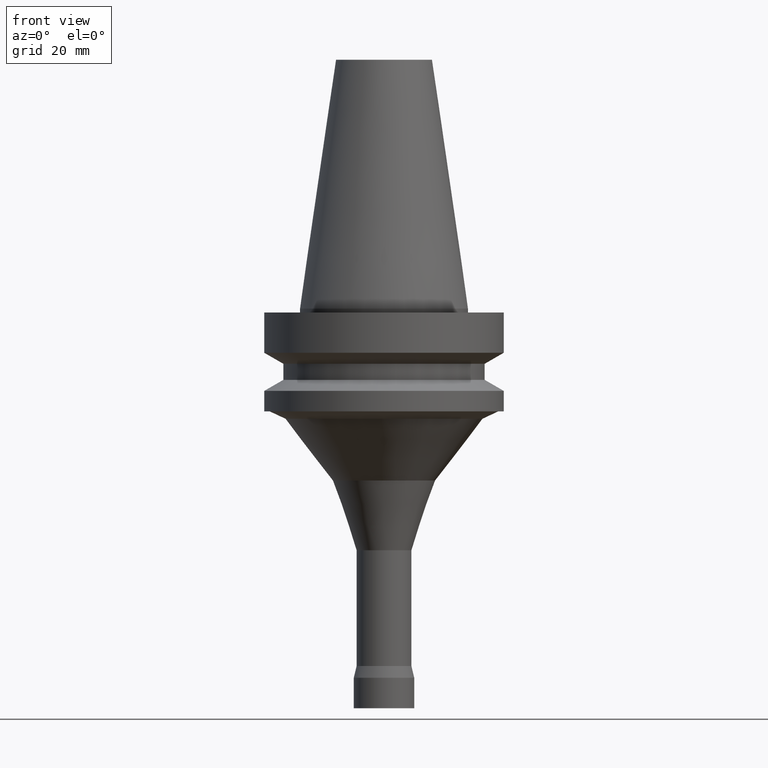
[diagram: clean part render]
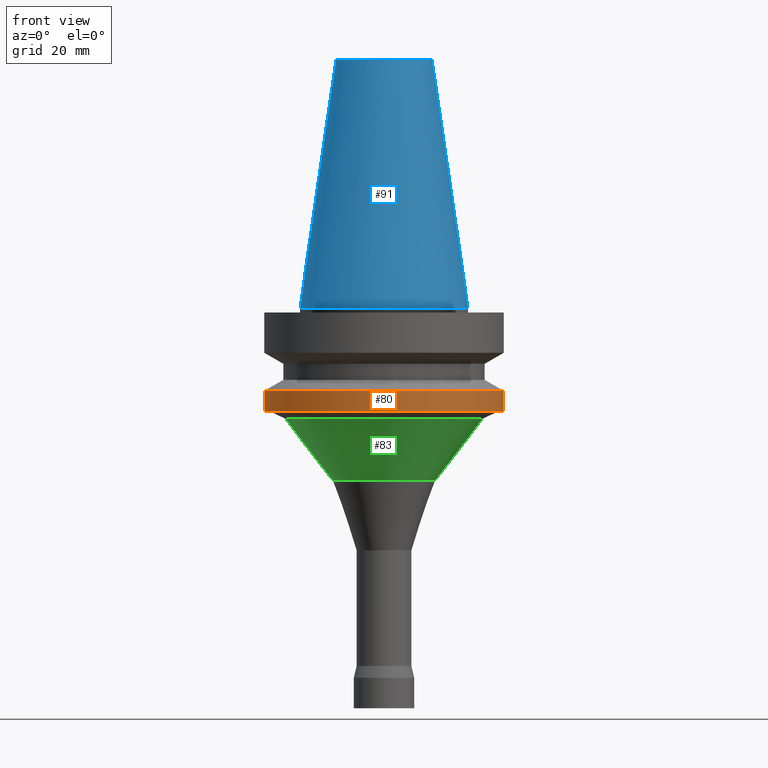
[diagram: same view with three faces highlighted in distinct colors, each labeled with its STEP entity id]
A machine part, front view with three faces highlighted in distinct colors.
Their STEP definitions:

[orange] entity #80 — the highlighted cylindrical surface (bore or boss wall) has radius 31.5 mm, axis along (-0, -0, 1).
#80=ADVANCED_FACE('',(#108,#109),#110,.T.);
#108=FACE_BOUND('',#157,.T.);
#109=FACE_BOUND('',#158,.T.);
#110=CYLINDRICAL_SURFACE('',#159,31.5);
#157=EDGE_LOOP('',(#216));
#158=EDGE_LOOP('',(#217));
#159=AXIS2_PLACEMENT_3D('',#218,#219,#220);
#216=ORIENTED_EDGE('',*,*,#280,.F.);
#217=ORIENTED_EDGE('',*,*,#279,.T.);
#218=CARTESIAN_POINT('',(1.48794586096403E-015,2.97589172192807E-015,-24.3));
#219=DIRECTION('',(-6.12323399573677E-017,-1.22464679914735E-016,1.0));
#220=DIRECTION('',(-1.23259516440783E-032,1.0,1.22464679914735E-016));
#279=EDGE_CURVE('',#300,#300,#301,.T.);
#280=EDGE_CURVE('',#302,#302,#303,.T.);
#300=VERTEX_POINT('',#332);
#301=CIRCLE('',#333,31.5);
#302=VERTEX_POINT('',#334);
#303=CIRCLE('',#335,31.5);
#332=CARTESIAN_POINT('',(1.32261854307914E-015,31.5,-21.6));
#333=AXIS2_PLACEMENT_3D('',#369,#370,#371);
#334=CARTESIAN_POINT('',(1.65327317884893E-015,31.5,-27.0));
#335=AXIS2_PLACEMENT_3D('',#372,#373,#374);
#369=CARTESIAN_POINT('',(1.32261854307914E-015,2.64523708615828E-015,-21.6));
#370=DIRECTION('',(6.12323399573677E-017,1.22464679914735E-016,-1.0));
#371=DIRECTION('',(-1.23259516440783E-032,1.0,1.22464679914735E-016));
#372=CARTESIAN_POINT('',(1.65327317884893E-015,3.30654635769785E-015,-27.0));
#373=DIRECTION('',(6.12323399573677E-017,1.22464679914735E-016,-1.0));
#374=DIRECTION('',(-1.23259516440783E-032,1.0,1.22464679914735E-016));

[blue] entity #91 — the highlighted conical surface has half-angle 8.297 deg.
#91=ADVANCED_FACE('',(#139,#140),#141,.T.);
#139=FACE_BOUND('',#188,.T.);
#140=FACE_BOUND('',#189,.T.);
#141=CONICAL_SURFACE('',#190,17.4562500026599,0.144812498159292);
#188=EDGE_LOOP('',(#269));
#189=EDGE_LOOP('',(#270));
#190=AXIS2_PLACEMENT_3D('',#271,#272,#273);
#269=ORIENTED_EDGE('',*,*,#288,.F.);
#270=ORIENTED_EDGE('',*,*,#289,.T.);
#271=CARTESIAN_POINT('',(-2.00229751660592E-015,-4.00459503321184E-015,32.7));
#272=DIRECTION('',(6.12323399573677E-017,1.22464679914735E-016,-1.0));
#273=DIRECTION('',(-1.23259516440783E-032,1.0,1.22464679914735E-016));
#288=EDGE_CURVE('',#318,#318,#319,.T.);
#289=EDGE_CURVE('',#320,#320,#321,.T.);
#318=VERTEX_POINT('',#350);
#319=CIRCLE('',#351,22.225);
#320=VERTEX_POINT('',#352);
#321=CIRCLE('',#353,12.6875000053197);
#350=CARTESIAN_POINT('',(-1.88218999349326E-031,22.225,1.32177751110499E-015));
#351=AXIS2_PLACEMENT_3D('',#396,#397,#398);
#352=CARTESIAN_POINT('',(-4.00459503321185E-015,12.6875000053197,65.4));
#353=AXIS2_PLACEMENT_3D('',#399,#400,#401);
#396=CARTESIAN_POINT('',(8.5826711511335E-032,1.7165342302267E-031,-1.40165656858926E-015));
#397=DIRECTION('',(6.12323399573677E-017,1.22464679914735E-016,-1.0));
#398=DIRECTION('',(-1.23259516440783E-032,1.0,1.22464679914735E-016));
#399=CARTESIAN_POINT('',(-4.00459503321185E-015,-8.00919006642369E-015,65.4));
#400=DIRECTION('',(6.12323399573677E-017,1.22464679914735E-016,-1.0));
#401=DIRECTION('',(-1.23259516440783E-032,1.0,1.22464679914735E-016));

[green] entity #83 — the highlighted conical surface has half-angle 37.71 deg.
#83=ADVANCED_FACE('',(#117,#118),#119,.T.);
#117=FACE_BOUND('',#166,.T.);
#118=FACE_BOUND('',#167,.T.);
#119=CONICAL_SURFACE('',#168,19.78046465096,0.65816443001271);
#166=EDGE_LOOP('',(#231));
#167=EDGE_LOOP('',(#232));
#168=AXIS2_PLACEMENT_3D('',#233,#234,#235);
#231=ORIENTED_EDGE('',*,*,#283,.F.);
#232=ORIENTED_EDGE('',*,*,#282,.T.);
#233=CARTESIAN_POINT('',(2.26825073952378E-015,4.53650147904755E-015,-37.0433457402252));
#234=DIRECTION('',(-6.12323399573677E-017,-1.22464679914735E-016,1.0));
#235=DIRECTION('',(-1.23259516440783E-032,1.0,1.22464679914735E-016));
#282=EDGE_CURVE('',#306,#306,#307,.T.);
#283=EDGE_CURVE('',#308,#308,#309,.T.);
#306=VERTEX_POINT('',#338);
#307=CIRCLE('',#339,26.04441887);
#308=VERTEX_POINT('',#340);
#309=CIRCLE('',#341,13.5165104319201);
#338=CARTESIAN_POINT('',(1.7721662798566E-015,26.04441887,-28.94167169));
#339=AXIS2_PLACEMENT_3D('',#378,#379,#380);
#340=CARTESIAN_POINT('',(2.76433519919095E-015,13.5165104319201,-45.1450197904504));
#341=AXIS2_PLACEMENT_3D('',#381,#382,#383);
#378=CARTESIAN_POINT('',(1.7721662798566E-015,3.54433255971321E-015,-28.94167169));
#379=DIRECTION('',(6.12323399573677E-017,1.22464679914735E-016,-1.0));
#380=DIRECTION('',(-1.23259516440783E-032,1.0,1.22464679914735E-016));
#381=CARTESIAN_POINT('',(2.76433519919095E-015,5.5286703983819E-015,-45.1450197904504));
#382=DIRECTION('',(6.12323399573677E-017,1.22464679914735E-016,-1.0));
#383=DIRECTION('',(-1.23259516440783E-032,1.0,1.22464679914735E-016));